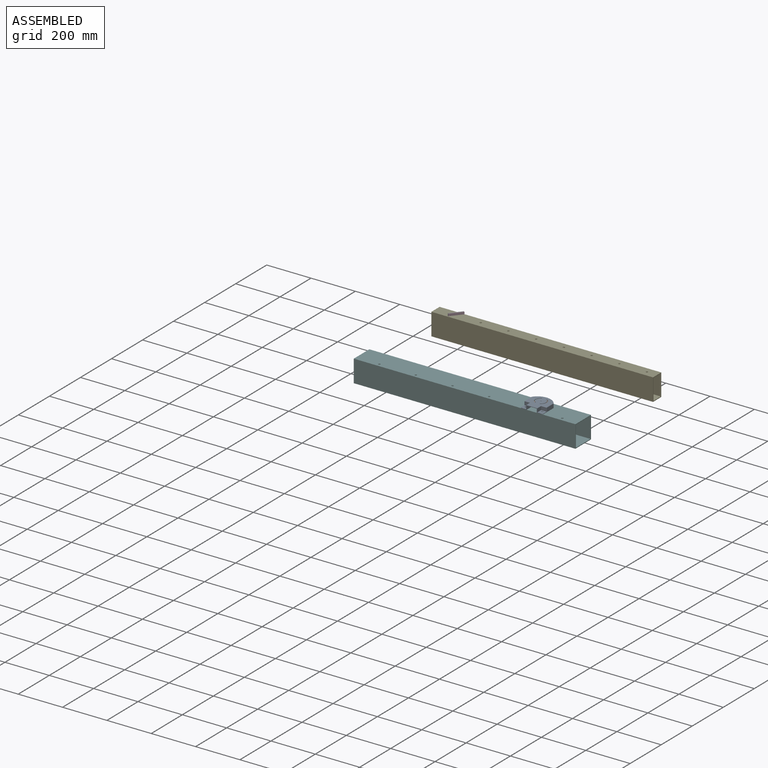
[diagram: assembled view]
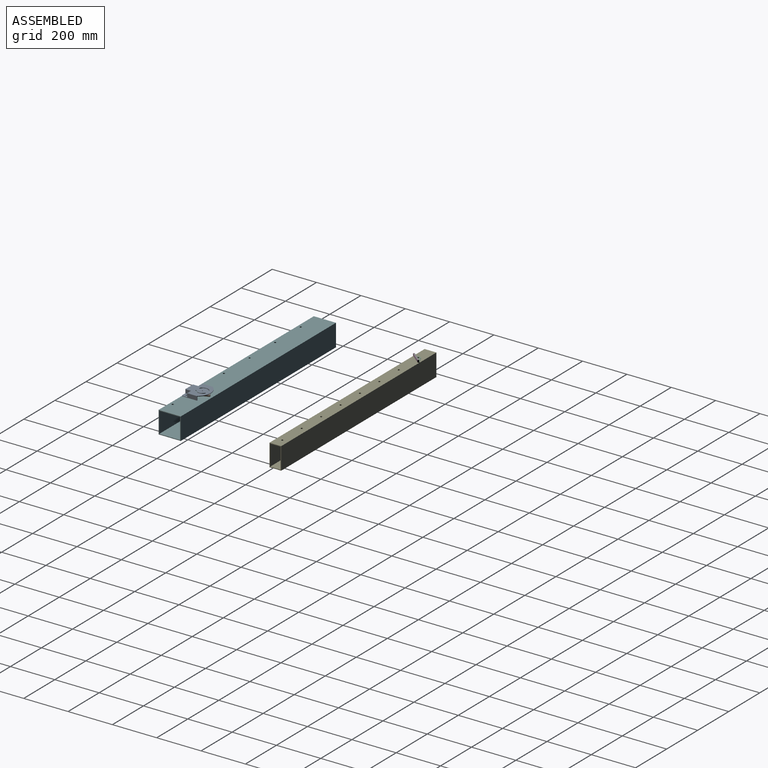
[diagram: assembled view, second angle]
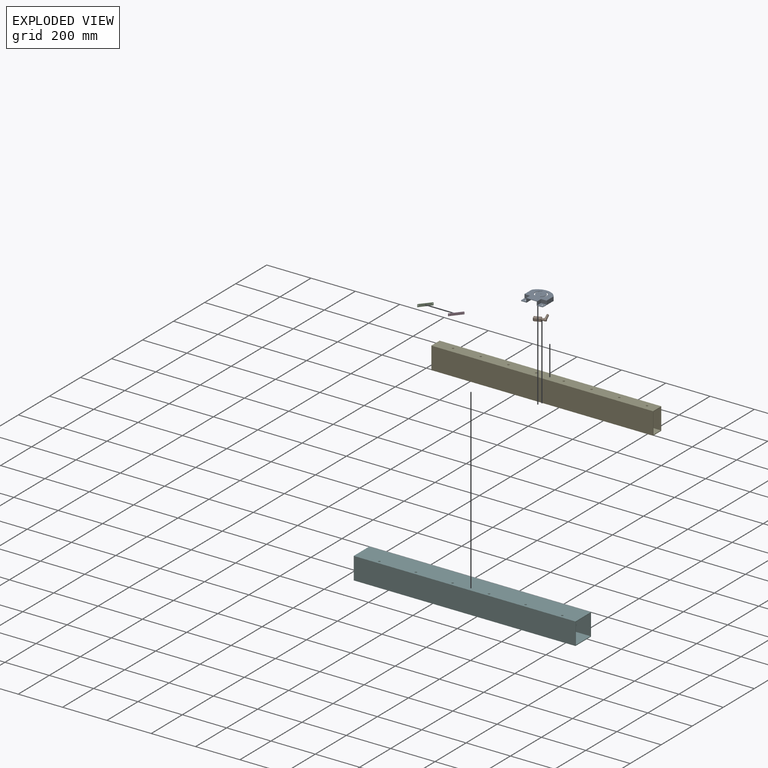
[diagram: exploded view]
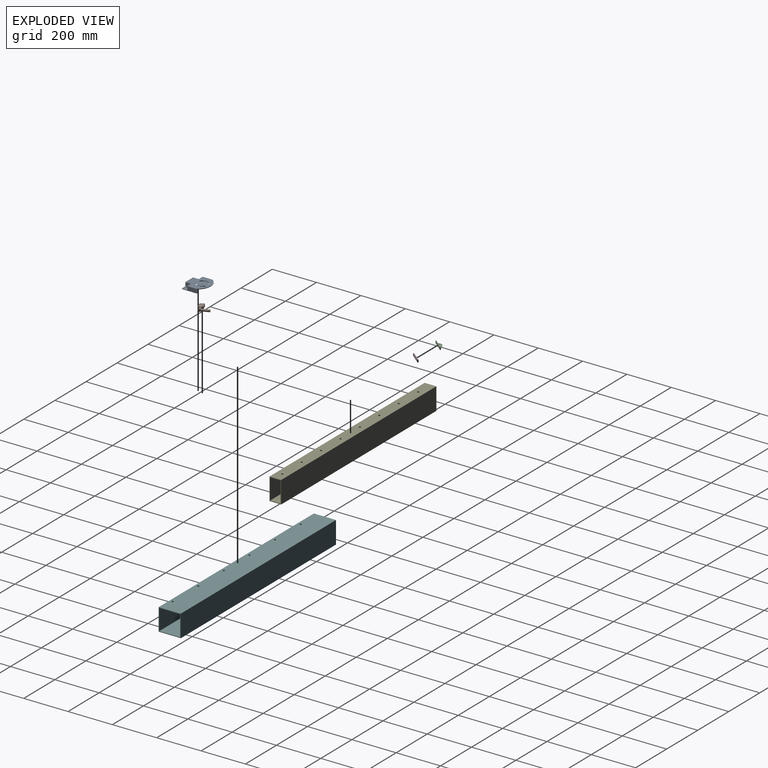
[diagram: exploded view, second angle]
ASSEMBLY  parts=6 mates=4
PART A: 45 faces, bbox 100x96.8x19 mm
  f0: plane 70x27mm, normal (0,0,-1), area 746mm2, adj f2,f6,f11,f13,f16,f28,f32,f44
  f1: plane 70x27mm, normal (0,0,-1), area 746mm2, adj f3,f7,f8,f11,f12,f29,f31,f43
  f2: plane 65x18mm, normal (-1,0,0), area 834mm2, adj f0,f14,f30,f32,f38,f39,f44
  f3: plane 65x18mm, normal (1,0,0), area 834mm2, adj f1,f9,f30,f31,f33,f34,f43
  f4: plane 98x96.83mm, normal (0,0,1), area 7009.7mm2, adj f11,f17,f18,f19,f20,f21,f22,f23
  f5: plane 100x96.83mm, normal (0,0,-1), area 6821.2mm2, adj f6,f7,f8,f11,f16,f17,f18,f19
  f6: plane 43x17mm, normal (1,0,0), area 731mm2, adj f0,f5,f16,f32
  f7: plane 43x17mm, normal (-1,0,0), area 731mm2, adj f1,f5,f8,f31
  f8: plane 25x17mm, normal (0,-1,0), area 425mm2, adj f1,f5,f7,f29
  f9: plane 26x25mm, normal (0,0,1), area 556.2mm2, adj f3,f11,f12,f15,f27,f33,f43
  f10: plane 24x16mm, normal (0,1,0), area 384mm2, adj f14,f26,f39,f41
  f11: plane 90x19mm, normal (0,1,0), area 247.6mm2, adj f0,f1,f4,f5,f9,f14,f26,f27
  f12: cylinder r=4.5mm len=9mm, axis (0,0,1), area 56.5mm2, adj f1,f9
  f13: cylinder r=4.5mm len=9mm, axis (0,0,1), area 56.5mm2, adj f0,f14
  f14: plane 26x25mm, normal (0,0,1), area 556.2mm2, adj f2,f10,f11,f13,f26,f39,f44
  f15: plane 24x16mm, normal (0,1,0), area 384mm2, adj f9,f27,f33,f37
  f16: plane 25x17mm, normal (0,-1,0), area 425mm2, adj f0,f5,f6,f28
  f17: cylinder r=2mm len=3.73mm, axis (0,0,1), area 12.6mm2, adj f4,f5,f18,f20
  f18: cylinder r=26mm len=45.03mm, axis (0,0,1), area 108.9mm2, adj f4,f5,f17,f19
  f19: cylinder r=2mm len=3.73mm, axis (0,0,1), area 12.6mm2, adj f4,f5,f18,f20
  f20: cylinder r=22mm len=38.11mm, axis (0,0,1), area 92.2mm2, adj f4,f5,f17,f19
  f21: cylinder r=1.75mm len=3.5mm, axis (0,0,1), area 22mm2, adj f4,f5
  f22: cylinder r=26mm len=45.03mm, axis (0,0,1), area 108.9mm2, adj f4,f5,f23,f25
  f23: cylinder r=2mm len=3.73mm, axis (0,0,1), area 12.6mm2, adj f4,f5,f22,f24
  f24: cylinder r=22mm len=38.11mm, axis (0,0,1), area 92.2mm2, adj f4,f5,f23,f25
  f25: cylinder r=2mm len=3.73mm, axis (0,0,1), area 12.6mm2, adj f4,f5,f22,f24
  f26: plane 25x16mm, normal (-1,0,0), area 400mm2, adj f10,f11,f14,f42
  f27: plane 25x16mm, normal (1,0,0), area 400mm2, adj f9,f11,f15,f35
  f28: plane 27x17mm, normal (1,0,0), area 459mm2, adj f0,f5,f11,f16
  f29: plane 27x17mm, normal (-1,0,0), area 459mm2, adj f1,f5,f8,f11
  f30: cylinder r=60mm len=100mm, axis (0,0,1), area 235.7mm2, adj f2,f3,f4,f5,f34,f38
  f31: plane 17x2mm, normal (0,-1,0), area 34mm2, adj f1,f3,f5,f7
  f32: plane 17x2mm, normal (0,-1,0), area 34mm2, adj f0,f2,f5,f6
  f33: cylinder r=1mm len=16mm, axis (0,0,-1), area 25.1mm2, adj f3,f9,f15,f36
  f34: cylinder r=1mm len=45.46mm, axis (0,-1,0), area 70mm2, adj f3,f4,f30,f36
  f35: cylinder r=1mm len=26mm, axis (0,-1,0), area 39.8mm2, adj f4,f11,f27,f37
  f36: sphere r=1mm, area 1.6mm2, adj f33,f34,f37
  f37: cylinder r=1mm len=25mm, axis (1,0,0), area 38.3mm2, adj f4,f15,f35,f36
  f38: cylinder r=1mm len=45.46mm, axis (0,1,0), area 70mm2, adj f2,f4,f30,f40
  f39: cylinder r=1mm len=16mm, axis (0,0,-1), area 25.1mm2, adj f2,f10,f14,f40
  f40: sphere r=1mm, area 1.6mm2, adj f38,f39,f41
  f41: cylinder r=1mm len=25mm, axis (1,0,0), area 38.3mm2, adj f4,f10,f40,f42
  f42: cylinder r=1mm len=26mm, axis (0,1,0), area 39.8mm2, adj f4,f11,f26,f41
  f43: cylinder r=5mm len=5mm, axis (0,0,-1), area 15.7mm2, adj f1,f3,f9,f11
  f44: cylinder r=5mm len=5mm, axis (0,0,1), area 15.7mm2, adj f0,f2,f11,f14
PART B: 21 faces, bbox 12x50x51 mm
  f0: plane 32x20mm, normal (1,0,0), area 605mm2, adj f2,f3,f4,f5,f6,f11,f12,f13
  f1: plane 32x20mm, normal (-1,0,0), area 605mm2, adj f2,f3,f4,f5,f6,f11,f12,f13
  f2: plane 20x12mm, normal (0,0,-1), area 161.5mm2, adj f0,f1,f3,f5,f7
  f3: plane 32x12mm, normal (0,1,0), area 384mm2, adj f0,f1,f2,f4
  f4: plane 15x12mm, normal (0,0,1), area 180mm2, adj f0,f1,f3,f6
  f5: plane 27x12mm, normal (0,-1,0), area 324mm2, adj f0,f1,f2,f6
  f6: plane 12x5mm, normal (0,-0.71,0.71), area 84.9mm2, adj f0,f1,f4,f5
  f7: cylinder r=5mm len=10mm, axis (0,0,1), area 282.7mm2, adj f2,f10
  f8: cylinder r=6mm len=12mm, axis (0,0,1), area 288.7mm2, adj f9,f10,f19
  f9: plane 12x12mm, normal (0,0,-1), area 113.1mm2, adj f8
  f10: plane 12x12mm, normal (0,0,1), area 34.6mm2, adj f7,f8
  f11: cylinder r=1.6mm len=12mm, axis (1,0,0), area 60.3mm2, adj f0,f1,f12,f14
  f12: plane 12x1mm, normal (0,1,0), area 12mm2, adj f0,f1,f11,f13
  f13: cylinder r=1.6mm len=12mm, axis (1,0,0), area 60.3mm2, adj f0,f1,f12,f14
  f14: plane 12x1mm, normal (0,-1,0), area 12mm2, adj f0,f1,f11,f13
  f15: cylinder r=1.6mm len=12mm, axis (1,0,0), area 60.3mm2, adj f0,f1,f16,f18
  f16: plane 12x1mm, normal (0,-1,0), area 12mm2, adj f0,f1,f15,f17
  f17: cylinder r=1.6mm len=12mm, axis (1,0,0), area 60.3mm2, adj f0,f1,f16,f18
  f18: plane 12x1mm, normal (0,1,0), area 12mm2, adj f0,f1,f15,f17
  f19: cylinder r=5mm len=36.68mm, axis (0,-1,0), area 1107.2mm2, adj f8,f20
  f20: plane 10x10mm, normal (0,1,0), area 78.5mm2, adj f19
PART C: 15 faces, bbox 20x62x12 mm
  f0: plane 11x3mm, normal (0,-1,0), area 24mm2, adj f2,f4,f5,f6,f10,f13
  f1: plane 11x3mm, normal (0,1,0), area 24mm2, adj f2,f4,f5,f6,f9,f12
  f2: plane 62x18mm, normal (0,0,1), area 575.1mm2, adj f0,f1,f6,f11,f12,f13,f14
  f3: plane 60x2mm, normal (0,0,1), area 120mm2, adj f4,f6,f9,f10
  f4: plane 62x12mm, normal (-1,0,0), area 729.4mm2, adj f0,f1,f3,f5,f7,f8,f9,f10
  f5: plane 62x20mm, normal (0,0,-1), area 699.1mm2, adj f0,f1,f4,f11,f12,f13,f14
  f6: plane 62x10mm, normal (1,0,0), area 605.4mm2, adj f0,f1,f2,f3,f7,f8,f9,f10
  f7: cylinder r=1.5mm len=3mm, axis (-1,0,0), area 18.8mm2, adj f4,f6
  f8: cylinder r=1.5mm len=3mm, axis (-1,0,0), area 18.8mm2, adj f4,f6
  f9: cylinder r=1mm len=2mm, axis (-1,0,0), area 3.1mm2, adj f1,f3,f4,f6
  f10: cylinder r=1mm len=2mm, axis (1,0,0), area 3.1mm2, adj f0,f3,f4,f6
  f11: cylinder r=4.5mm len=9mm, axis (0,0,1), area 56.5mm2, adj f2,f5
  f12: plane 15.14x14.28mm, normal (0.73,0.69,0), area 41.6mm2, adj f1,f2,f5,f14
  f13: plane 35.9x16.12mm, normal (0.91,-0.41,0), area 78.7mm2, adj f0,f2,f5,f14
  f14: cylinder r=10mm len=10.96mm, axis (0,0,1), area 23.6mm2, adj f2,f5,f12,f13
PART D: 8 faces, bbox 4x62x10 mm
  f0: plane 62x4mm, normal (0,0,-1), area 248mm2, adj f1,f5,f6,f7
  f1: plane 10x4mm, normal (0,1,0), area 40mm2, adj f0,f2,f6,f7
  f2: plane 62x4mm, normal (0,0,1), area 248mm2, adj f1,f5,f6,f7
  f3: cylinder r=1.7mm len=4mm, axis (-1,0,0), area 42.7mm2, adj f6,f7
  f4: cylinder r=1.7mm len=4mm, axis (-1,0,0), area 42.7mm2, adj f6,f7
  f5: plane 10x4mm, normal (0,-1,0), area 40mm2, adj f0,f2,f6,f7
  f6: plane 62x10mm, normal (1,0,0), area 601.8mm2, adj f0,f1,f2,f3,f4,f5
  f7: plane 62x10mm, normal (-1,0,0), area 601.8mm2, adj f0,f1,f2,f3,f4,f5
PART E: 18 faces, bbox 1000x53x100 mm
  f0: plane 1000x53mm, normal (0,0,1), area 52513.4mm2, adj f1,f7,f8,f9,f10,f11,f12,f13
  f1: plane 1000x100mm, normal (0,-1,0), area 100000mm2, adj f0,f2,f8,f9
  f2: plane 1000x53mm, normal (0,0,-1), area 53000mm2, adj f1,f7,f8,f9
  f3: plane 1000x47mm, normal (0,0,-1), area 46513.4mm2, adj f4,f6,f8,f9,f10,f11,f12,f13
  f4: plane 1000x94mm, normal (0,-1,0), area 94000mm2, adj f3,f5,f8,f9
  f5: plane 1000x47mm, normal (0,0,1), area 47000mm2, adj f4,f6,f8,f9
  f6: plane 1000x94mm, normal (0,1,0), area 94000mm2, adj f3,f5,f8,f9
  f7: plane 1000x100mm, normal (0,1,0), area 100000mm2, adj f0,f2,f8,f9
  f8: plane 100x53mm, normal (1,0,0), area 882mm2, adj f0,f1,f2,f3,f4,f5,f6,f7
  f9: plane 100x53mm, normal (-1,0,0), area 882mm2, adj f0,f1,f2,f3,f4,f5,f6,f7
  f10: cylinder r=4.4mm len=8.8mm, axis (0,0,1), area 82.9mm2, adj f0,f3
  f11: cylinder r=4.4mm len=8.8mm, axis (0,0,1), area 82.9mm2, adj f0,f3
  f12: cylinder r=4.4mm len=8.8mm, axis (0,0,1), area 82.9mm2, adj f0,f3
  f13: cylinder r=4.4mm len=8.8mm, axis (0,0,1), area 82.9mm2, adj f0,f3
  f14: cylinder r=4.4mm len=8.8mm, axis (0,0,1), area 82.9mm2, adj f0,f3
  f15: cylinder r=4.4mm len=8.8mm, axis (0,0,1), area 82.9mm2, adj f0,f3
  f16: cylinder r=4.4mm len=8.8mm, axis (0,0,1), area 82.9mm2, adj f0,f3
  f17: cylinder r=4.4mm len=8.8mm, axis (0,0,1), area 82.9mm2, adj f0,f3
PART F: 16 faces, bbox 1000x100x100 mm
  f0: plane 1000x100mm, normal (0,0,1), area 99626.7mm2, adj f1,f7,f8,f9,f10,f11,f12,f13
  f1: plane 1000x100mm, normal (0,-1,0), area 100000mm2, adj f0,f2,f8,f9
  f2: plane 1000x100mm, normal (0,0,-1), area 100000mm2, adj f1,f7,f8,f9
  f3: plane 1000x94mm, normal (0,0,-1), area 93626.7mm2, adj f4,f6,f8,f9,f10,f11,f12,f13
  f4: plane 1000x94mm, normal (0,-1,0), area 94000mm2, adj f3,f5,f8,f9
  f5: plane 1000x94mm, normal (0,0,1), area 94000mm2, adj f4,f6,f8,f9
  f6: plane 1000x94mm, normal (0,1,0), area 94000mm2, adj f3,f5,f8,f9
  f7: plane 1000x100mm, normal (0,1,0), area 100000mm2, adj f0,f2,f8,f9
  f8: plane 100x100mm, normal (1,0,0), area 1164mm2, adj f0,f1,f2,f3,f4,f5,f6,f7
  f9: plane 100x100mm, normal (-1,0,0), area 1164mm2, adj f0,f1,f2,f3,f4,f5,f6,f7
  f10: cylinder r=4.45mm len=8.9mm, axis (0,0,1), area 83.9mm2, adj f0,f3
  f11: cylinder r=4.45mm len=8.9mm, axis (0,0,1), area 83.9mm2, adj f0,f3
  f12: cylinder r=4.45mm len=8.9mm, axis (0,0,1), area 83.9mm2, adj f0,f3
  f13: cylinder r=4.45mm len=8.9mm, axis (0,0,1), area 83.9mm2, adj f0,f3
  f14: cylinder r=4.45mm len=8.9mm, axis (0,0,1), area 83.9mm2, adj f0,f3
  f15: cylinder r=4.45mm len=8.9mm, axis (0,0,1), area 83.9mm2, adj f0,f3
PLACE A rot(axis=(0,0,1),180deg) t=(269.19,-254.88,36.25)mm
PLACE B rot(axis=(0.19,-0.96,0.19),92.2deg) t=(261,-256.36,47.25)mm
PLACE C rot(axis=(0,0,1),140.5deg) t=(-440.86,222.2,36.25)mm
PLACE D rot(axis=(0,0,-1),39.5deg) t=(-439.32,220.92,43.25)mm
PLACE E t=(-33.28,-4.88,36.25)mm fixed
PLACE F t=(-33.28,-4.88,36.25)mm fixed
MATE fastened A.f12 <-> F.f11  axis (0,0,-1) through (231.69,-289.88,36.25)mm
MATE revolute E.f17 <-> C.f11  axis (0,0,1) through (-454.3,221.62,36.25)mm
MATE revolute B.f0 <-> A.f20  axis (0,0,1) through (269.19,-244.88,53.25)mm
MATE fastened C.f8 <-> D.f3  axis (0.77,-0.64,0) through (-458.68,200.6,43.25)mm
